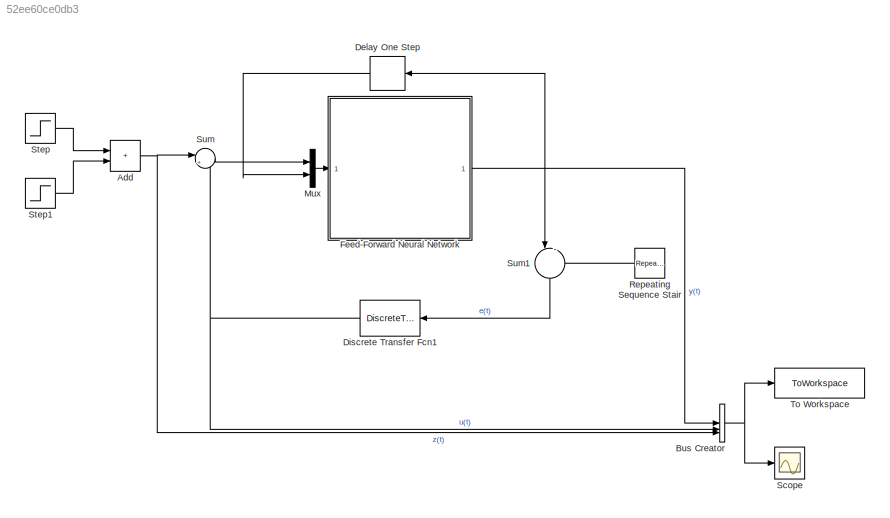
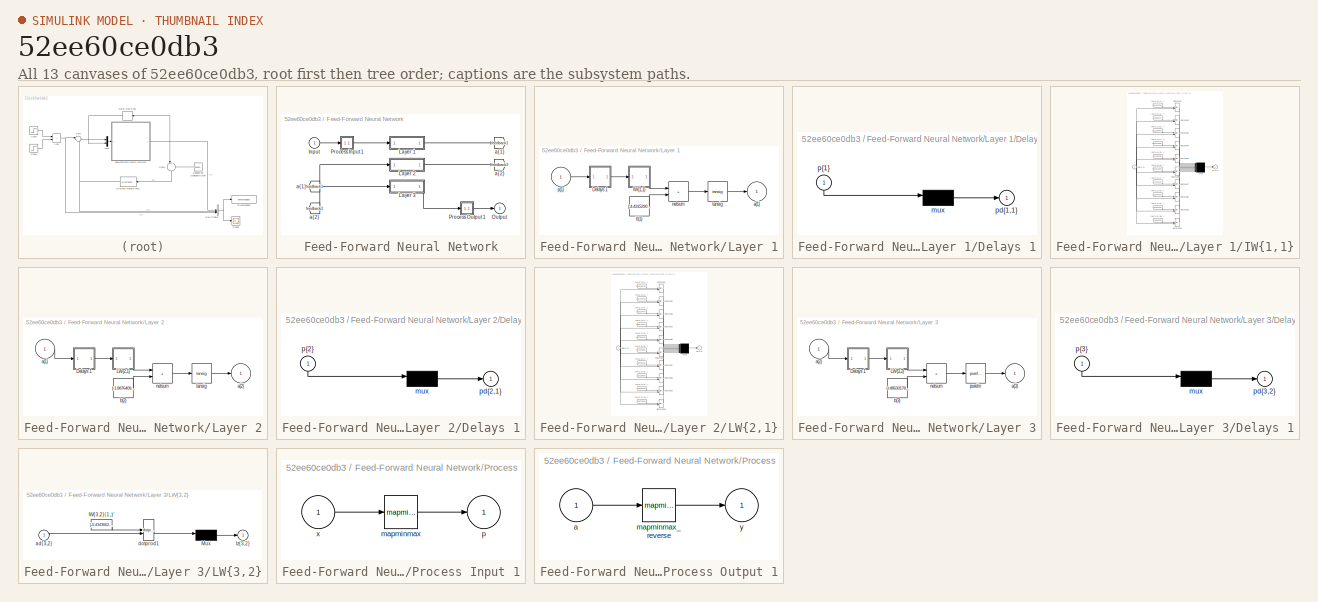
[diagram: thumbnail index - all 13 canvases of the model, root first then tree order]
MODEL slx_52ee60ce0db3
KIND model
CONFIG AbsTol = auto
CONFIG EnableMultiTasking = off
CONFIG FixedStep = auto
CONFIG MaxStep = auto
CONFIG MinStep = auto
CONFIG RelTol = 1e-3
CONFIG SampleTimeConstraint = Unconstrained
CONFIG SolverName = VariableStepAuto
CONFIG StartTime = 0.0
CONFIG StopTime = 20.0
BLOCK [Sum] Add
  IconShape = rectangular
BLOCK [BusCreator] Bus Creator
  DisplayOption = bar
  InheritFromInputs = on
  Inputs = 3
BLOCK [Delay] Delay One Step
  DelayLength = 1
  InputPortMap = u0
  NameLocation = top
BLOCK [DiscreteTransferFcn] Discrete Transfer Fcn1
  Denominator = cell2mat(discrete_regulator.Denominator)
  InputPortMap = u0
  NameLocation = top
  Numerator = cell2mat(discrete_regulator.Numerator)
BLOCK [SubSystem] Feed-Forward Neural Network
BLOCK [From] Feed-Forward Neural Network/ a{1} 
  GotoTag = feedback1
BLOCK [From] Feed-Forward Neural Network/ a{2} 
  GotoTag = feedback2
BLOCK [Inport] Feed-Forward Neural Network/Input
  PortDimensions = 2
BLOCK [SubSystem] Feed-Forward Neural Network/Layer 1
BLOCK [SubSystem] Feed-Forward Neural Network/Layer 1/Delays 1
BLOCK [Mux] Feed-Forward Neural Network/Layer 1/Delays 1/mux
  Inputs = 1
BLOCK [Outport] Feed-Forward Neural Network/Layer 1/Delays 1/pd{1,1}
BLOCK [Inport] Feed-Forward Neural Network/Layer 1/Delays 1/p{1}
  NameLocation = left
  PortDimensions = 2
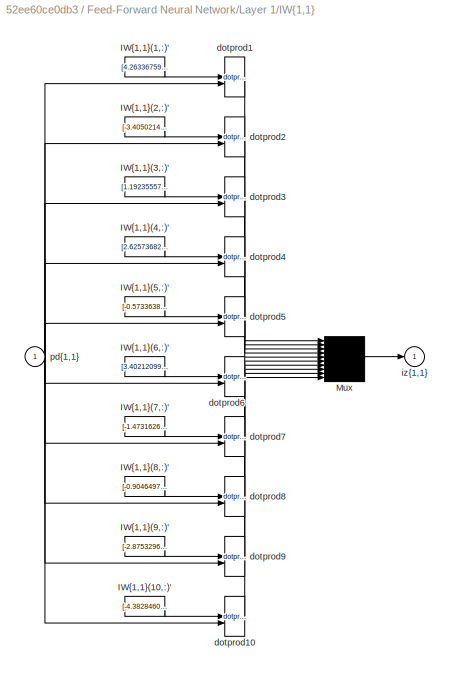
BLOCK [SubSystem] Feed-Forward Neural Network/Layer 1/IW{1,1}
BLOCK [Constant] Feed-Forward Neural Network/Layer 1/IW{1,1}/IW{1,1}(1,:)'
  Value = [4.2633675916151627660610756720416247844696044921875;-1.1907200059469094099995345459319651126861572265625]
BLOCK [Constant] Feed-Forward Neural Network/Layer 1/IW{1,1}/IW{1,1}(10,:)'
  Value = [-4.3828460946857905611295791459269821643829345703125;-1.2118570053224717586459746598848141729831695556640625]
BLOCK [Constant] Feed-Forward Neural Network/Layer 1/IW{1,1}/IW{1,1}(2,:)'
  Value = [-3.405021415382943228422618631157092750072479248046875;2.083690493528093323760685962042771279811859130859375]
BLOCK [Constant] Feed-Forward Neural Network/Layer 1/IW{1,1}/IW{1,1}(3,:)'
  Value = [1.1923555749737542175381577180814929306507110595703125;3.975820750197506026069049767102114856243133544921875]
BLOCK [Constant] Feed-Forward Neural Network/Layer 1/IW{1,1}/IW{1,1}(4,:)'
  Value = [2.62573682657206308732611432787962257862091064453125;-3.1494637573161607946303774951957166194915771484375]
BLOCK [Constant] Feed-Forward Neural Network/Layer 1/IW{1,1}/IW{1,1}(5,:)'
  Value = [-0.57336383327378948049357632044120691716670989990234375;-4.30023494066969558247137683792971074581146240234375]
BLOCK [Constant] Feed-Forward Neural Network/Layer 1/IW{1,1}/IW{1,1}(6,:)'
  Value = [3.402120991053975362916617086739279329776763916015625;0.09478371566753007737560210443916730582714080810546875]
BLOCK [Constant] Feed-Forward Neural Network/Layer 1/IW{1,1}/IW{1,1}(7,:)'
  Value = [-1.4731626116505920354171621511341072618961334228515625;3.90495287178658134763509224285371601581573486328125]
BLOCK [Constant] Feed-Forward Neural Network/Layer 1/IW{1,1}/IW{1,1}(8,:)'
  Value = [-0.9046497284136816308119932728004641830921173095703125;-4.35542318738805267486213779193349182605743408203125]
BLOCK [Constant] Feed-Forward Neural Network/Layer 1/IW{1,1}/IW{1,1}(9,:)'
  Value = [-2.875329609299817068546190057531930506229400634765625;3.421386601489260659292312993784435093402862548828125]
BLOCK [Mux] Feed-Forward Neural Network/Layer 1/IW{1,1}/Mux
  Inputs = 10
BLOCK [Reference] Feed-Forward Neural Network/Layer 1/IW{1,1}/dotprod1  REF=neural/Weight Functions/dotprod
  SourceBlock = neural/Weight Functions/dotprod
  SourceType = DOTPROD
BLOCK [Reference] Feed-Forward Neural Network/Layer 1/IW{1,1}/dotprod10  REF=neural/Weight Functions/dotprod
  SourceBlock = neural/Weight Functions/dotprod
  SourceType = DOTPROD
BLOCK [Reference] Feed-Forward Neural Network/Layer 1/IW{1,1}/dotprod2  REF=neural/Weight Functions/dotprod
  SourceBlock = neural/Weight Functions/dotprod
  SourceType = DOTPROD
BLOCK [Reference] Feed-Forward Neural Network/Layer 1/IW{1,1}/dotprod3  REF=neural/Weight Functions/dotprod
  SourceBlock = neural/Weight Functions/dotprod
  SourceType = DOTPROD
BLOCK [Reference] Feed-Forward Neural Network/Layer 1/IW{1,1}/dotprod4  REF=neural/Weight Functions/dotprod
  SourceBlock = neural/Weight Functions/dotprod
  SourceType = DOTPROD
BLOCK [Reference] Feed-Forward Neural Network/Layer 1/IW{1,1}/dotprod5  REF=neural/Weight Functions/dotprod
  SourceBlock = neural/Weight Functions/dotprod
  SourceType = DOTPROD
BLOCK [Reference] Feed-Forward Neural Network/Layer 1/IW{1,1}/dotprod6  REF=neural/Weight Functions/dotprod
  SourceBlock = neural/Weight Functions/dotprod
  SourceType = DOTPROD
BLOCK [Reference] Feed-Forward Neural Network/Layer 1/IW{1,1}/dotprod7  REF=neural/Weight Functions/dotprod
  SourceBlock = neural/Weight Functions/dotprod
  SourceType = DOTPROD
BLOCK [Reference] Feed-Forward Neural Network/Layer 1/IW{1,1}/dotprod8  REF=neural/Weight Functions/dotprod
  SourceBlock = neural/Weight Functions/dotprod
  SourceType = DOTPROD
BLOCK [Reference] Feed-Forward Neural Network/Layer 1/IW{1,1}/dotprod9  REF=neural/Weight Functions/dotprod
  SourceBlock = neural/Weight Functions/dotprod
  SourceType = DOTPROD
BLOCK [Outport] Feed-Forward Neural Network/Layer 1/IW{1,1}/iz{1,1}
BLOCK [Inport] Feed-Forward Neural Network/Layer 1/IW{1,1}/pd{1,1}
  PortDimensions = 2
BLOCK [Outport] Feed-Forward Neural Network/Layer 1/a{1}
  InitialOutput = [0;0;0;0;0;0;0;0;0;0]
BLOCK [Constant] Feed-Forward Neural Network/Layer 1/b{1}
  Value = [-4.43152904493535704233408978325314819812774658203125;4.062422267591511371165324817411601543426513671875;-2.569053712858639482163880529697053134441375732421875;-1.342631300234523816783394067897461354732513427734375;0.3494516360133521626352148814476095139980316162109375;1.097813950280740247222865946241654455661773681640625;-1.647991177522317496340065190452151000499725341796875;-2.13139567965756082...<+137ch>
BLOCK [Sum] Feed-Forward Neural Network/Layer 1/netsum
  IconShape = rectangular
  InputSameDT = on
  Inputs = 2
  OutDataTypeStr = Inherit: Same as first input
  SaturateOnIntegerOverflow = on
BLOCK [Inport] Feed-Forward Neural Network/Layer 1/p{1}
  PortDimensions = 2
BLOCK [Reference] Feed-Forward Neural Network/Layer 1/tansig  REF=neural/Transfer Functions/tansig
  SourceBlock = neural/Transfer Functions/tansig
  SourceType = TANSIG
BLOCK [SubSystem] Feed-Forward Neural Network/Layer 2
BLOCK [SubSystem] Feed-Forward Neural Network/Layer 2/Delays 1
BLOCK [Mux] Feed-Forward Neural Network/Layer 2/Delays 1/mux
  Inputs = 1
BLOCK [Outport] Feed-Forward Neural Network/Layer 2/Delays 1/pd{2,1}
BLOCK [Inport] Feed-Forward Neural Network/Layer 2/Delays 1/p{2}
  NameLocation = left
  PortDimensions = 10
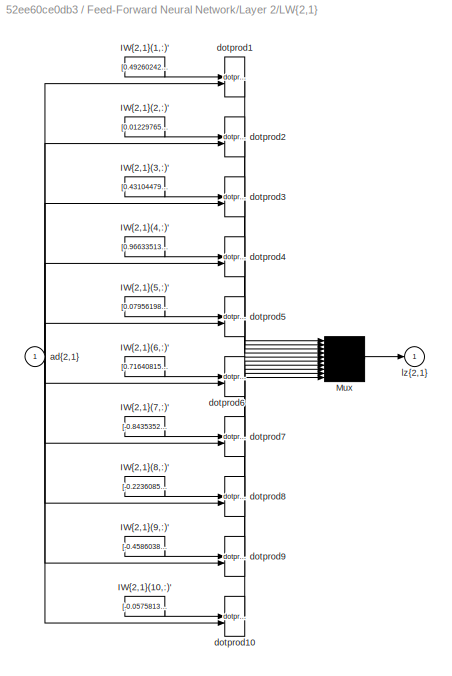
BLOCK [SubSystem] Feed-Forward Neural Network/Layer 2/LW{2,1}
BLOCK [Constant] Feed-Forward Neural Network/Layer 2/LW{2,1}/IW{2,1}(1,:)'
  Value = [0.492602425585279835029695050252485089004039764404296875;0.751328677194657235105523795937187969684600830078125;0.14868618773868924609615760346059687435626983642578125;-0.59560719713487231263826515714754350483417510986328125;0.84620185655351842779481330580892972648143768310546875;0.7351087403634846140221270616166293621063232421875;0.316604593385196808608128549167304299771785736083984375;0.33500883...<+161ch>
BLOCK [Constant] Feed-Forward Neural Network/Layer 2/LW{2,1}/IW{2,1}(10,:)'
  Value = [-0.057581363245562254549181346874320297501981258392333984375;-0.8853595507646756512798447147361002862453460693359375;-0.1054893006424788282071602907308260910212993621826171875;-0.60571053789872031369867499961401335895061492919921875;-0.3473586042813032737086587076191790401935577392578125;-0.16512412258019804056630164268426597118377685546875;-0.57045827445640273634097638932871632277965545654296875...<+171ch>
BLOCK [Constant] Feed-Forward Neural Network/Layer 2/LW{2,1}/IW{2,1}(2,:)'
  Value = [0.0122976560846179173991377098218436003662645816802978515625;-0.8275715046983440625893990727490745484828948974609375;-0.83200157544794273167809706137632019817829132080078125;0.08743297112984556307413441800235887058079242706298828125;-0.8695310511754053006683307103230617940425872802734375;-0.71412627621471680416931349100195802748203277587890625;0.113432018405589141174516498722368851304054260253906...<+173ch>
BLOCK [Constant] Feed-Forward Neural Network/Layer 2/LW{2,1}/IW{2,1}(3,:)'
  Value = [0.4310447904593848189591653863317333161830902099609375;-0.89612845182605338489878477048478089272975921630859375;-0.33699888938383837366785655831336043775081634521484375;-0.49516073090588730298833297638338990509510040283203125;-0.10501938637753398253504855119899730198085308074951171875;0.433635153915045645778292282557231374084949493408203125;-0.5130946719246984866202865305240266025066375732421875;...<+165ch>
BLOCK [Constant] Feed-Forward Neural Network/Layer 2/LW{2,1}/IW{2,1}(4,:)'
  Value = [0.96633513009907379132101823415723629295825958251953125;-0.430258152817019345892646242646151222288608551025390625;1.14932119264648946455054101534187793731689453125;0.0538554260580100530031444350242963992059230804443359375;0.54951635577361435114340793006704188883304595947265625;0.01359849332929738245645534533423415268771350383758544921875;-0.09776681343319977568473433393592131324112415313720703125...<+171ch>
BLOCK [Constant] Feed-Forward Neural Network/Layer 2/LW{2,1}/IW{2,1}(5,:)'
  Value = [0.0795619898325576058173425053610117174685001373291015625;0.2276682063428826785500547202900634147226810455322265625;0.60496562853734570097685718792490661144256591796875;0.80852332308337049315838385155075229704380035400390625;-0.70256804464323607817277661524713039398193359375;0.67590154673450653088906392440549097955226898193359375;-0.53970141203777455274348540115170180797576904296875;-0.1662920351...<+157ch>
BLOCK [Constant] Feed-Forward Neural Network/Layer 2/LW{2,1}/IW{2,1}(6,:)'
  Value = [0.716408155033525506638625302002765238285064697265625;-0.00994245879165718549064223452660371549427509307861328125;0.8950513895044256429400775232352316379547119140625;0.1016314752419109901371285786808584816753864288330078125;0.01977247403092073640973325154845952056348323822021484375;0.355546513093805582883533134008757770061492919921875;0.79802599285190545241874815474147908389568328857421875;-0.492...<+164ch>
BLOCK [Constant] Feed-Forward Neural Network/Layer 2/LW{2,1}/IW{2,1}(7,:)'
  Value = [-0.84353524015126624124860654774238355457782745361328125;0.0421052761430837085843137401752755977213382720947265625;1.1290166330825524010350591197493486106395721435546875;-1.194409881412322960159144713543355464935302734375;0.018778926073411528196999142892309464514255523681640625;-0.1386773489787882507329186410061083734035491943359375;0.86893263074262383494072992107248865067958831787109375;-0.27505...<+167ch>
BLOCK [Constant] Feed-Forward Neural Network/Layer 2/LW{2,1}/IW{2,1}(8,:)'
  Value = [-0.223608556642923173018999705163878388702869415283203125;-0.825214454488493398542914292193017899990081787109375;0.2986243392146088471150733312242664396762847900390625;-0.65039085736387869385310978032066486775875091552734375;-0.443803453705102157744732949140598066151142120361328125;-0.41761465477399528634094849621760658919811248779296875;0.60931227141087607179770202492363750934600830078125;0.6473...<+166ch>
BLOCK [Constant] Feed-Forward Neural Network/Layer 2/LW{2,1}/IW{2,1}(9,:)'
  Value = [-0.458603880305307243236967451593955047428607940673828125;0.5398702204838914386897386066266335546970367431640625;-0.427148705251072902111530993352062068879604339599609375;-0.407238508560305856320837847306393086910247802734375;-1.067023620455526344841246100259013473987579345703125;0.303477375031763418888886008062399923801422119140625;0.24722838570961302995243613622733391821384429931640625;-1.07255...<+164ch>
BLOCK [Mux] Feed-Forward Neural Network/Layer 2/LW{2,1}/Mux
  Inputs = 10
BLOCK [Inport] Feed-Forward Neural Network/Layer 2/LW{2,1}/ad{2,1}
  PortDimensions = 10
BLOCK [Reference] Feed-Forward Neural Network/Layer 2/LW{2,1}/dotprod1  REF=neural/Weight Functions/dotprod
  SourceBlock = neural/Weight Functions/dotprod
  SourceType = DOTPROD
BLOCK [Reference] Feed-Forward Neural Network/Layer 2/LW{2,1}/dotprod10  REF=neural/Weight Functions/dotprod
  SourceBlock = neural/Weight Functions/dotprod
  SourceType = DOTPROD
BLOCK [Reference] Feed-Forward Neural Network/Layer 2/LW{2,1}/dotprod2  REF=neural/Weight Functions/dotprod
  SourceBlock = neural/Weight Functions/dotprod
  SourceType = DOTPROD
BLOCK [Reference] Feed-Forward Neural Network/Layer 2/LW{2,1}/dotprod3  REF=neural/Weight Functions/dotprod
  SourceBlock = neural/Weight Functions/dotprod
  SourceType = DOTPROD
BLOCK [Reference] Feed-Forward Neural Network/Layer 2/LW{2,1}/dotprod4  REF=neural/Weight Functions/dotprod
  SourceBlock = neural/Weight Functions/dotprod
  SourceType = DOTPROD
BLOCK [Reference] Feed-Forward Neural Network/Layer 2/LW{2,1}/dotprod5  REF=neural/Weight Functions/dotprod
  SourceBlock = neural/Weight Functions/dotprod
  SourceType = DOTPROD
BLOCK [Reference] Feed-Forward Neural Network/Layer 2/LW{2,1}/dotprod6  REF=neural/Weight Functions/dotprod
  SourceBlock = neural/Weight Functions/dotprod
  SourceType = DOTPROD
BLOCK [Reference] Feed-Forward Neural Network/Layer 2/LW{2,1}/dotprod7  REF=neural/Weight Functions/dotprod
  SourceBlock = neural/Weight Functions/dotprod
  SourceType = DOTPROD
BLOCK [Reference] Feed-Forward Neural Network/Layer 2/LW{2,1}/dotprod8  REF=neural/Weight Functions/dotprod
  SourceBlock = neural/Weight Functions/dotprod
  SourceType = DOTPROD
BLOCK [Reference] Feed-Forward Neural Network/Layer 2/LW{2,1}/dotprod9  REF=neural/Weight Functions/dotprod
  SourceBlock = neural/Weight Functions/dotprod
  SourceType = DOTPROD
BLOCK [Outport] Feed-Forward Neural Network/Layer 2/LW{2,1}/lz{2,1}
BLOCK [Inport] Feed-Forward Neural Network/Layer 2/a{1} 
  PortDimensions = 10
BLOCK [Outport] Feed-Forward Neural Network/Layer 2/a{2}
  InitialOutput = [0;0;0;0;0;0;0;0;0;0]
BLOCK [Constant] Feed-Forward Neural Network/Layer 2/b{2}
  Value = [-1.8876408033767975158667695723124779760837554931640625;-1.3742303835167961612029330353834666311740875244140625;-1.092713700133353338372899088426493108272552490234375;-0.5843982329851320489666477442369796335697174072265625;0.0874830854773966937187879011617042124271392822265625;0.164321287446091035544526448575197719037532806396484375;-0.363184653339809371264124138178885914385318756103515625;-1.122...<+157ch>
BLOCK [Sum] Feed-Forward Neural Network/Layer 2/netsum
  IconShape = rectangular
  InputSameDT = on
  Inputs = 2
  OutDataTypeStr = Inherit: Same as first input
  SaturateOnIntegerOverflow = on
BLOCK [Reference] Feed-Forward Neural Network/Layer 2/tansig  REF=neural/Transfer Functions/tansig
  SourceBlock = neural/Transfer Functions/tansig
  SourceType = TANSIG
BLOCK [SubSystem] Feed-Forward Neural Network/Layer 3
BLOCK [SubSystem] Feed-Forward Neural Network/Layer 3/Delays 1
BLOCK [Mux] Feed-Forward Neural Network/Layer 3/Delays 1/mux
  Inputs = 1
BLOCK [Outport] Feed-Forward Neural Network/Layer 3/Delays 1/pd{3,2}
BLOCK [Inport] Feed-Forward Neural Network/Layer 3/Delays 1/p{3}
  NameLocation = left
  PortDimensions = 10
BLOCK [SubSystem] Feed-Forward Neural Network/Layer 3/LW{3,2}
BLOCK [Constant] Feed-Forward Neural Network/Layer 3/LW{3,2}/IW{3,2}(1,:)'
  Value = [-0.4343662576203433101085238376981578767299652099609375;-0.1665940618987889199065222101125982590019702911376953125;-0.2625218885119953160511840906110592186450958251953125;0.06366060563178389808403068172992789186537265777587890625;0.45281797853880989546127011635689996182918548583984375;0.4839187053624278700425520582939498126506805419921875;-0.295842424756489974502216000473708845674991607666015625;...<+168ch>
BLOCK [Mux] Feed-Forward Neural Network/Layer 3/LW{3,2}/Mux
  Inputs = 1
BLOCK [Inport] Feed-Forward Neural Network/Layer 3/LW{3,2}/ad{3,2}
  PortDimensions = 10
BLOCK [Reference] Feed-Forward Neural Network/Layer 3/LW{3,2}/dotprod1  REF=neural/Weight Functions/dotprod
  SourceBlock = neural/Weight Functions/dotprod
  SourceType = DOTPROD
BLOCK [Outport] Feed-Forward Neural Network/Layer 3/LW{3,2}/lz{3,2}
BLOCK [Inport] Feed-Forward Neural Network/Layer 3/a{2} 
  PortDimensions = 10
BLOCK [Outport] Feed-Forward Neural Network/Layer 3/a{3}
  InitialOutput = 0
BLOCK [Constant] Feed-Forward Neural Network/Layer 3/b{3}
  Value = -0.486301785522676610629133620022912509739398956298828125
BLOCK [Sum] Feed-Forward Neural Network/Layer 3/netsum
  IconShape = rectangular
  InputSameDT = on
  Inputs = 2
  OutDataTypeStr = Inherit: Same as first input
  SaturateOnIntegerOverflow = on
BLOCK [Reference] Feed-Forward Neural Network/Layer 3/purelin  REF=neural/Transfer Functions/purelin
  SourceBlock = neural/Transfer Functions/purelin
  SourceType = PURELIN
BLOCK [Outport] Feed-Forward Neural Network/Output
  InitialOutput = 0
BLOCK [SubSystem] Feed-Forward Neural Network/Process Input 1
BLOCK [Reference] Feed-Forward Neural Network/Process Input 1/mapminmax  REF=neural/Processing Functions/mapminmax
  SourceBlock = neural/Processing Functions/mapminmax
  SourceType = MAPMINMAX Preprocess
BLOCK [Outport] Feed-Forward Neural Network/Process Input 1/p
  PortDimensions = 2
BLOCK [Inport] Feed-Forward Neural Network/Process Input 1/x
  PortDimensions = 2
BLOCK [SubSystem] Feed-Forward Neural Network/Process Output 1
BLOCK [Inport] Feed-Forward Neural Network/Process Output 1/a
  PortDimensions = 1
BLOCK [Reference] Feed-Forward Neural Network/Process Output 1/mapminmax_reverse  REF=neural/Processing Functions/mapminmax_reverse
  SourceBlock = neural/Processing Functions/mapminmax_reverse
  SourceType = MAPMINMAX Reverse Process
BLOCK [Outport] Feed-Forward Neural Network/Process Output 1/y
  PortDimensions = 1
BLOCK [Goto] Feed-Forward Neural Network/a{1}
  GotoTag = feedback1
BLOCK [Goto] Feed-Forward Neural Network/a{2}
  GotoTag = feedback2
BLOCK [Mux] Mux
  DisplayOption = bar
  Inputs = 2
BLOCK [Reference] Repeating Sequence Stair  REF=simulink/Sources/Repeating
Sequence
Stair
  NameLocation = top
  SourceBlock = simulink/Sources/Repeating\nSequence\nStair
  SourceType = Repeating Sequence Stair
BLOCK [Scope] Scope
  Floating = off
  NumInputPorts = 1
  ScopeSpecificationString = Simulink.scopes.TimeScopeBlockCfg('CurrentConfiguration', extmgr.ConfigurationSet(extmgr.Configuration('Core','General UI',true),extmgr.Configuration('Core','Source UI',true),extmgr.Configuration('Sources','WiredSimulink',true),extmgr.Configuration('Visuals','Time Domain',true,'SerializedDisplays',{struct('MinYLimReal','-0.38657','MaxYLimReal','3.4791','YLabelReal','','MinYLimMag','0.00000','MaxYL...<+1465ch>
BLOCK [Step] Step
  After = - z
  SampleTime = 0
  Time = disorder_times(1)
BLOCK [Step] Step1
  After = z
  SampleTime = 0
  Time = disorder_times(2)
BLOCK [Sum] Sum
  Inputs = |++
BLOCK [Sum] Sum1
  Inputs = |-+
  NameLocation = left
BLOCK [ToWorkspace] To Workspace
  FixptAsFi = on
  MaxDataPoints = inf
  SampleTime = -1
  SaveFormat = Timeseries
  VariableName = simout
NET Add:1 -> Bus Creator:3, Sum:1
NET Bus Creator:1 -> Scope:1, To Workspace:1
LINE Delay One Step:1 -> Mux:2
NET Discrete Transfer Fcn1:1 -> Bus Creator:2, Sum:2
LINE Feed-Forward Neural Network/ a{1} :1 -> Feed-Forward Neural Network/Layer 2:1
LINE Feed-Forward Neural Network/ a{2} :1 -> Feed-Forward Neural Network/Layer 3:1
LINE Feed-Forward Neural Network/Input:1 -> Feed-Forward Neural Network/Process Input 1:1
LINE Feed-Forward Neural Network/Layer 1/Delays 1/mux:1 -> Feed-Forward Neural Network/Layer 1/Delays 1/pd{1,1}:1
LINE Feed-Forward Neural Network/Layer 1/Delays 1/p{1}:1 -> Feed-Forward Neural Network/Layer 1/Delays 1/mux:1
LINE Feed-Forward Neural Network/Layer 1/Delays 1:1 -> Feed-Forward Neural Network/Layer 1/IW{1,1}:1
LINE Feed-Forward Neural Network/Layer 1/IW{1,1}/IW{1,1}(1,:)':1 -> Feed-Forward Neural Network/Layer 1/IW{1,1}/dotprod1:1
LINE Feed-Forward Neural Network/Layer 1/IW{1,1}/IW{1,1}(10,:)':1 -> Feed-Forward Neural Network/Layer 1/IW{1,1}/dotprod10:1
LINE Feed-Forward Neural Network/Layer 1/IW{1,1}/IW{1,1}(2,:)':1 -> Feed-Forward Neural Network/Layer 1/IW{1,1}/dotprod2:1
LINE Feed-Forward Neural Network/Layer 1/IW{1,1}/IW{1,1}(3,:)':1 -> Feed-Forward Neural Network/Layer 1/IW{1,1}/dotprod3:1
LINE Feed-Forward Neural Network/Layer 1/IW{1,1}/IW{1,1}(4,:)':1 -> Feed-Forward Neural Network/Layer 1/IW{1,1}/dotprod4:1
LINE Feed-Forward Neural Network/Layer 1/IW{1,1}/IW{1,1}(5,:)':1 -> Feed-Forward Neural Network/Layer 1/IW{1,1}/dotprod5:1
LINE Feed-Forward Neural Network/Layer 1/IW{1,1}/IW{1,1}(6,:)':1 -> Feed-Forward Neural Network/Layer 1/IW{1,1}/dotprod6:1
LINE Feed-Forward Neural Network/Layer 1/IW{1,1}/IW{1,1}(7,:)':1 -> Feed-Forward Neural Network/Layer 1/IW{1,1}/dotprod7:1
LINE Feed-Forward Neural Network/Layer 1/IW{1,1}/IW{1,1}(8,:)':1 -> Feed-Forward Neural Network/Layer 1/IW{1,1}/dotprod8:1
LINE Feed-Forward Neural Network/Layer 1/IW{1,1}/IW{1,1}(9,:)':1 -> Feed-Forward Neural Network/Layer 1/IW{1,1}/dotprod9:1
LINE Feed-Forward Neural Network/Layer 1/IW{1,1}/Mux:1 -> Feed-Forward Neural Network/Layer 1/IW{1,1}/iz{1,1}:1
LINE Feed-Forward Neural Network/Layer 1/IW{1,1}/dotprod10:1 -> Feed-Forward Neural Network/Layer 1/IW{1,1}/Mux:10
LINE Feed-Forward Neural Network/Layer 1/IW{1,1}/dotprod1:1 -> Feed-Forward Neural Network/Layer 1/IW{1,1}/Mux:1
LINE Feed-Forward Neural Network/Layer 1/IW{1,1}/dotprod2:1 -> Feed-Forward Neural Network/Layer 1/IW{1,1}/Mux:2
LINE Feed-Forward Neural Network/Layer 1/IW{1,1}/dotprod3:1 -> Feed-Forward Neural Network/Layer 1/IW{1,1}/Mux:3
LINE Feed-Forward Neural Network/Layer 1/IW{1,1}/dotprod4:1 -> Feed-Forward Neural Network/Layer 1/IW{1,1}/Mux:4
LINE Feed-Forward Neural Network/Layer 1/IW{1,1}/dotprod5:1 -> Feed-Forward Neural Network/Layer 1/IW{1,1}/Mux:5
LINE Feed-Forward Neural Network/Layer 1/IW{1,1}/dotprod6:1 -> Feed-Forward Neural Network/Layer 1/IW{1,1}/Mux:6
LINE Feed-Forward Neural Network/Layer 1/IW{1,1}/dotprod7:1 -> Feed-Forward Neural Network/Layer 1/IW{1,1}/Mux:7
LINE Feed-Forward Neural Network/Layer 1/IW{1,1}/dotprod8:1 -> Feed-Forward Neural Network/Layer 1/IW{1,1}/Mux:8
LINE Feed-Forward Neural Network/Layer 1/IW{1,1}/dotprod9:1 -> Feed-Forward Neural Network/Layer 1/IW{1,1}/Mux:9
NET Feed-Forward Neural Network/Layer 1/IW{1,1}/pd{1,1}:1 -> Feed-Forward Neural Network/Layer 1/IW{1,1}/dotprod10:2, Feed-Forward Neural Network/Layer 1/IW{1,1}/dotprod1:2, Feed-Forward Neural Network/Layer 1/IW{1,1}/dotprod2:2, Feed-Forward Neural Network/Layer 1/IW{1,1}/dotprod3:2, Feed-Forward Neural Network/Layer 1/IW{1,1}/dotprod4:2, Feed-Forward Neural Network/Layer 1/IW{1,1}/dotprod5:2, Feed-Forward Neural Network/Layer 1/IW{1,1}/dotprod6:2, Feed-Forward Neural Network/Layer 1/IW{1,1}/dotprod7:2, Feed-Forward Neural Network/Layer 1/IW{1,1}/dotprod8:2, Feed-Forward Neural Network/Layer 1/IW{1,1}/dotprod9:2
LINE Feed-Forward Neural Network/Layer 1/IW{1,1}:1 -> Feed-Forward Neural Network/Layer 1/netsum:1
LINE Feed-Forward Neural Network/Layer 1/b{1}:1 -> Feed-Forward Neural Network/Layer 1/netsum:2
LINE Feed-Forward Neural Network/Layer 1/netsum:1 -> Feed-Forward Neural Network/Layer 1/tansig:1
LINE Feed-Forward Neural Network/Layer 1/p{1}:1 -> Feed-Forward Neural Network/Layer 1/Delays 1:1
LINE Feed-Forward Neural Network/Layer 1/tansig:1 -> Feed-Forward Neural Network/Layer 1/a{1}:1
LINE Feed-Forward Neural Network/Layer 1:1 -> Feed-Forward Neural Network/a{1}:1
LINE Feed-Forward Neural Network/Layer 2/Delays 1/mux:1 -> Feed-Forward Neural Network/Layer 2/Delays 1/pd{2,1}:1
LINE Feed-Forward Neural Network/Layer 2/Delays 1/p{2}:1 -> Feed-Forward Neural Network/Layer 2/Delays 1/mux:1
LINE Feed-Forward Neural Network/Layer 2/Delays 1:1 -> Feed-Forward Neural Network/Layer 2/LW{2,1}:1
LINE Feed-Forward Neural Network/Layer 2/LW{2,1}/IW{2,1}(1,:)':1 -> Feed-Forward Neural Network/Layer 2/LW{2,1}/dotprod1:1
LINE Feed-Forward Neural Network/Layer 2/LW{2,1}/IW{2,1}(10,:)':1 -> Feed-Forward Neural Network/Layer 2/LW{2,1}/dotprod10:1
LINE Feed-Forward Neural Network/Layer 2/LW{2,1}/IW{2,1}(2,:)':1 -> Feed-Forward Neural Network/Layer 2/LW{2,1}/dotprod2:1
LINE Feed-Forward Neural Network/Layer 2/LW{2,1}/IW{2,1}(3,:)':1 -> Feed-Forward Neural Network/Layer 2/LW{2,1}/dotprod3:1
LINE Feed-Forward Neural Network/Layer 2/LW{2,1}/IW{2,1}(4,:)':1 -> Feed-Forward Neural Network/Layer 2/LW{2,1}/dotprod4:1
LINE Feed-Forward Neural Network/Layer 2/LW{2,1}/IW{2,1}(5,:)':1 -> Feed-Forward Neural Network/Layer 2/LW{2,1}/dotprod5:1
LINE Feed-Forward Neural Network/Layer 2/LW{2,1}/IW{2,1}(6,:)':1 -> Feed-Forward Neural Network/Layer 2/LW{2,1}/dotprod6:1
LINE Feed-Forward Neural Network/Layer 2/LW{2,1}/IW{2,1}(7,:)':1 -> Feed-Forward Neural Network/Layer 2/LW{2,1}/dotprod7:1
LINE Feed-Forward Neural Network/Layer 2/LW{2,1}/IW{2,1}(8,:)':1 -> Feed-Forward Neural Network/Layer 2/LW{2,1}/dotprod8:1
LINE Feed-Forward Neural Network/Layer 2/LW{2,1}/IW{2,1}(9,:)':1 -> Feed-Forward Neural Network/Layer 2/LW{2,1}/dotprod9:1
LINE Feed-Forward Neural Network/Layer 2/LW{2,1}/Mux:1 -> Feed-Forward Neural Network/Layer 2/LW{2,1}/lz{2,1}:1
NET Feed-Forward Neural Network/Layer 2/LW{2,1}/ad{2,1}:1 -> Feed-Forward Neural Network/Layer 2/LW{2,1}/dotprod10:2, Feed-Forward Neural Network/Layer 2/LW{2,1}/dotprod1:2, Feed-Forward Neural Network/Layer 2/LW{2,1}/dotprod2:2, Feed-Forward Neural Network/Layer 2/LW{2,1}/dotprod3:2, Feed-Forward Neural Network/Layer 2/LW{2,1}/dotprod4:2, Feed-Forward Neural Network/Layer 2/LW{2,1}/dotprod5:2, Feed-Forward Neural Network/Layer 2/LW{2,1}/dotprod6:2, Feed-Forward Neural Network/Layer 2/LW{2,1}/dotprod7:2, Feed-Forward Neural Network/Layer 2/LW{2,1}/dotprod8:2, Feed-Forward Neural Network/Layer 2/LW{2,1}/dotprod9:2
LINE Feed-Forward Neural Network/Layer 2/LW{2,1}/dotprod10:1 -> Feed-Forward Neural Network/Layer 2/LW{2,1}/Mux:10
LINE Feed-Forward Neural Network/Layer 2/LW{2,1}/dotprod1:1 -> Feed-Forward Neural Network/Layer 2/LW{2,1}/Mux:1
LINE Feed-Forward Neural Network/Layer 2/LW{2,1}/dotprod2:1 -> Feed-Forward Neural Network/Layer 2/LW{2,1}/Mux:2
LINE Feed-Forward Neural Network/Layer 2/LW{2,1}/dotprod3:1 -> Feed-Forward Neural Network/Layer 2/LW{2,1}/Mux:3
LINE Feed-Forward Neural Network/Layer 2/LW{2,1}/dotprod4:1 -> Feed-Forward Neural Network/Layer 2/LW{2,1}/Mux:4
LINE Feed-Forward Neural Network/Layer 2/LW{2,1}/dotprod5:1 -> Feed-Forward Neural Network/Layer 2/LW{2,1}/Mux:5
LINE Feed-Forward Neural Network/Layer 2/LW{2,1}/dotprod6:1 -> Feed-Forward Neural Network/Layer 2/LW{2,1}/Mux:6
LINE Feed-Forward Neural Network/Layer 2/LW{2,1}/dotprod7:1 -> Feed-Forward Neural Network/Layer 2/LW{2,1}/Mux:7
LINE Feed-Forward Neural Network/Layer 2/LW{2,1}/dotprod8:1 -> Feed-Forward Neural Network/Layer 2/LW{2,1}/Mux:8
LINE Feed-Forward Neural Network/Layer 2/LW{2,1}/dotprod9:1 -> Feed-Forward Neural Network/Layer 2/LW{2,1}/Mux:9
LINE Feed-Forward Neural Network/Layer 2/LW{2,1}:1 -> Feed-Forward Neural Network/Layer 2/netsum:1
LINE Feed-Forward Neural Network/Layer 2/a{1} :1 -> Feed-Forward Neural Network/Layer 2/Delays 1:1
LINE Feed-Forward Neural Network/Layer 2/b{2}:1 -> Feed-Forward Neural Network/Layer 2/netsum:2
LINE Feed-Forward Neural Network/Layer 2/netsum:1 -> Feed-Forward Neural Network/Layer 2/tansig:1
LINE Feed-Forward Neural Network/Layer 2/tansig:1 -> Feed-Forward Neural Network/Layer 2/a{2}:1
LINE Feed-Forward Neural Network/Layer 2:1 -> Feed-Forward Neural Network/a{2}:1
LINE Feed-Forward Neural Network/Layer 3/Delays 1/mux:1 -> Feed-Forward Neural Network/Layer 3/Delays 1/pd{3,2}:1
LINE Feed-Forward Neural Network/Layer 3/Delays 1/p{3}:1 -> Feed-Forward Neural Network/Layer 3/Delays 1/mux:1
LINE Feed-Forward Neural Network/Layer 3/Delays 1:1 -> Feed-Forward Neural Network/Layer 3/LW{3,2}:1
LINE Feed-Forward Neural Network/Layer 3/LW{3,2}/IW{3,2}(1,:)':1 -> Feed-Forward Neural Network/Layer 3/LW{3,2}/dotprod1:1
LINE Feed-Forward Neural Network/Layer 3/LW{3,2}/Mux:1 -> Feed-Forward Neural Network/Layer 3/LW{3,2}/lz{3,2}:1
LINE Feed-Forward Neural Network/Layer 3/LW{3,2}/ad{3,2}:1 -> Feed-Forward Neural Network/Layer 3/LW{3,2}/dotprod1:2
LINE Feed-Forward Neural Network/Layer 3/LW{3,2}/dotprod1:1 -> Feed-Forward Neural Network/Layer 3/LW{3,2}/Mux:1
LINE Feed-Forward Neural Network/Layer 3/LW{3,2}:1 -> Feed-Forward Neural Network/Layer 3/netsum:1
LINE Feed-Forward Neural Network/Layer 3/a{2} :1 -> Feed-Forward Neural Network/Layer 3/Delays 1:1
LINE Feed-Forward Neural Network/Layer 3/b{3}:1 -> Feed-Forward Neural Network/Layer 3/netsum:2
LINE Feed-Forward Neural Network/Layer 3/netsum:1 -> Feed-Forward Neural Network/Layer 3/purelin:1
LINE Feed-Forward Neural Network/Layer 3/purelin:1 -> Feed-Forward Neural Network/Layer 3/a{3}:1
LINE Feed-Forward Neural Network/Layer 3:1 -> Feed-Forward Neural Network/Process Output 1:1
LINE Feed-Forward Neural Network/Process Input 1/mapminmax:1 -> Feed-Forward Neural Network/Process Input 1/p:1
LINE Feed-Forward Neural Network/Process Input 1/x:1 -> Feed-Forward Neural Network/Process Input 1/mapminmax:1
LINE Feed-Forward Neural Network/Process Input 1:1 -> Feed-Forward Neural Network/Layer 1:1
LINE Feed-Forward Neural Network/Process Output 1/a:1 -> Feed-Forward Neural Network/Process Output 1/mapminmax_reverse:1
LINE Feed-Forward Neural Network/Process Output 1/mapminmax_reverse:1 -> Feed-Forward Neural Network/Process Output 1/y:1
LINE Feed-Forward Neural Network/Process Output 1:1 -> Feed-Forward Neural Network/Output:1
NET Feed-Forward Neural Network:1 -> Bus Creator:1, Delay One Step:1, Sum1:1
LINE Mux:1 -> Feed-Forward Neural Network:1
LINE Repeating Sequence Stair:1 -> Sum1:2
LINE Step1:1 -> Add:2
LINE Step:1 -> Add:1
LINE Sum1:1 -> Discrete Transfer Fcn1:1
LINE Sum:1 -> Mux:1
note: NET lines group one-source signal fan-out (src -> all destinations, sorted); 1:1 wires keep LINE
